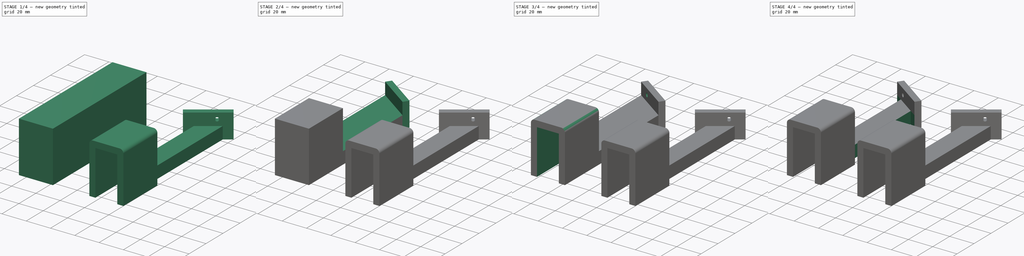
[diagram: build sequence overview — one tinted view per stage of 4, left to right]
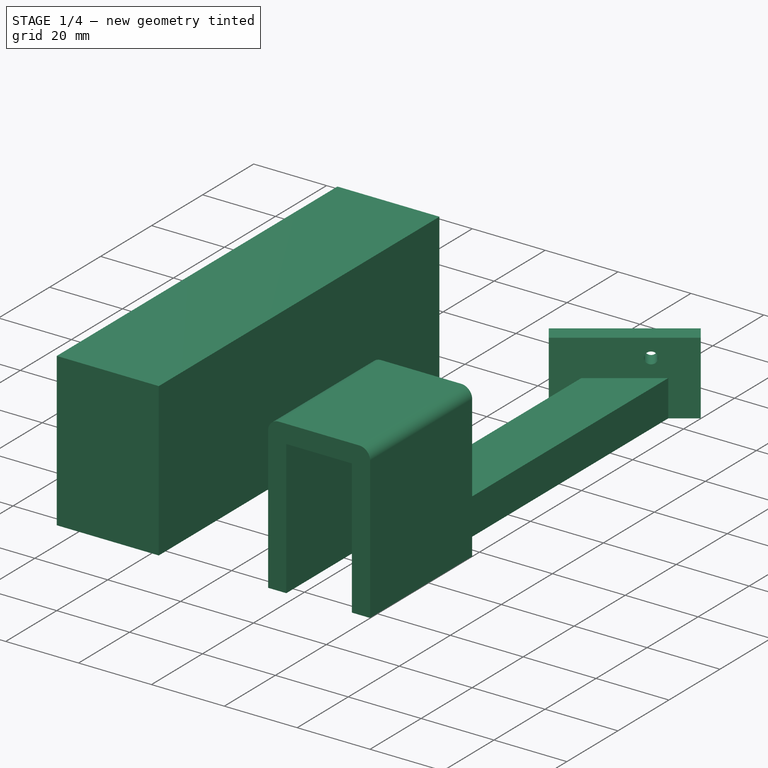
[diagram: stage 1 of 4 — iso view after this stage's code; geometry added in this stage tinted green]
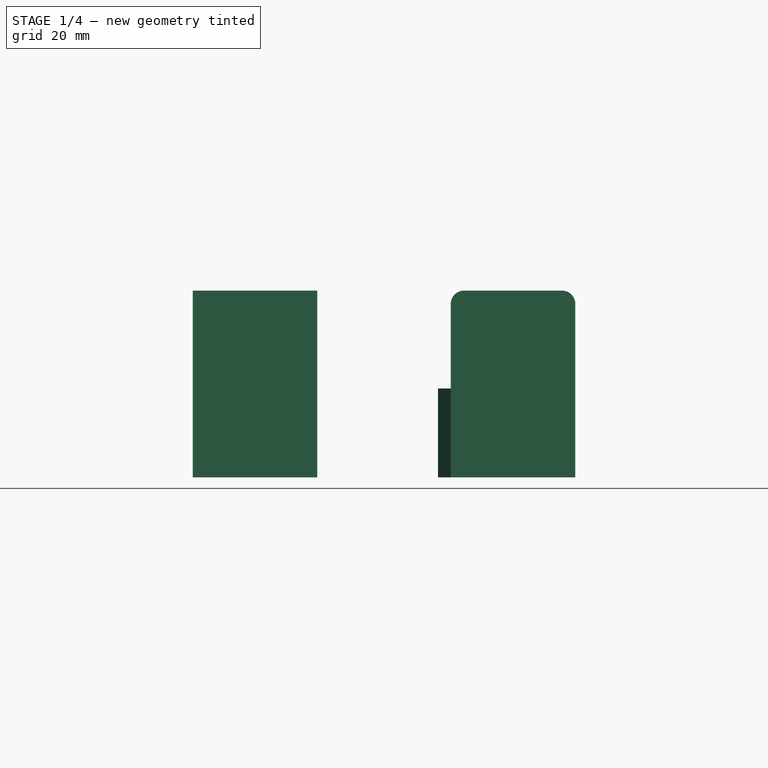
[diagram: stage 1 of 4 — front view after this stage's code; geometry added in this stage tinted green]
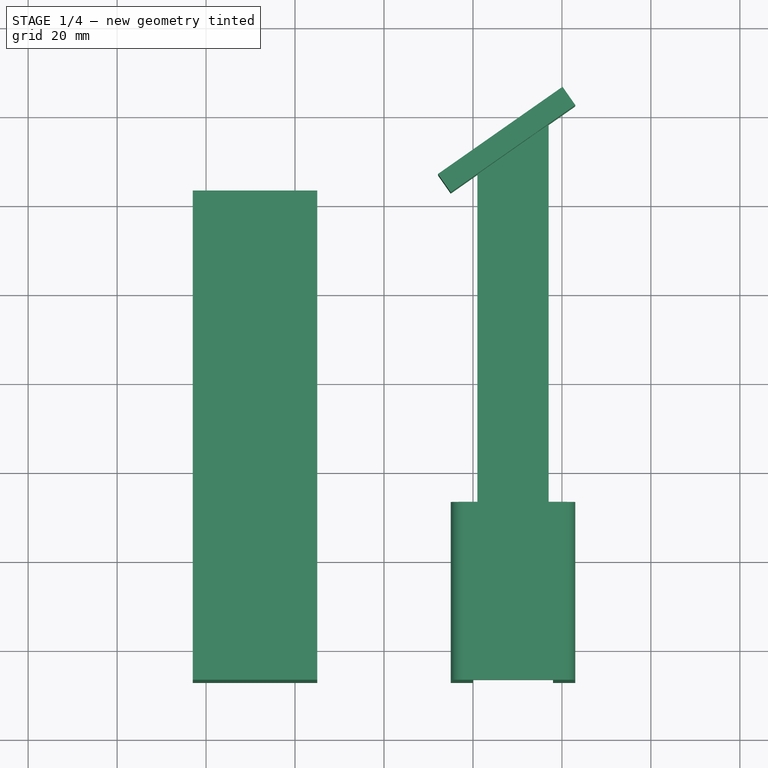
[diagram: stage 1 of 4 — top view after this stage's code; geometry added in this stage tinted green]
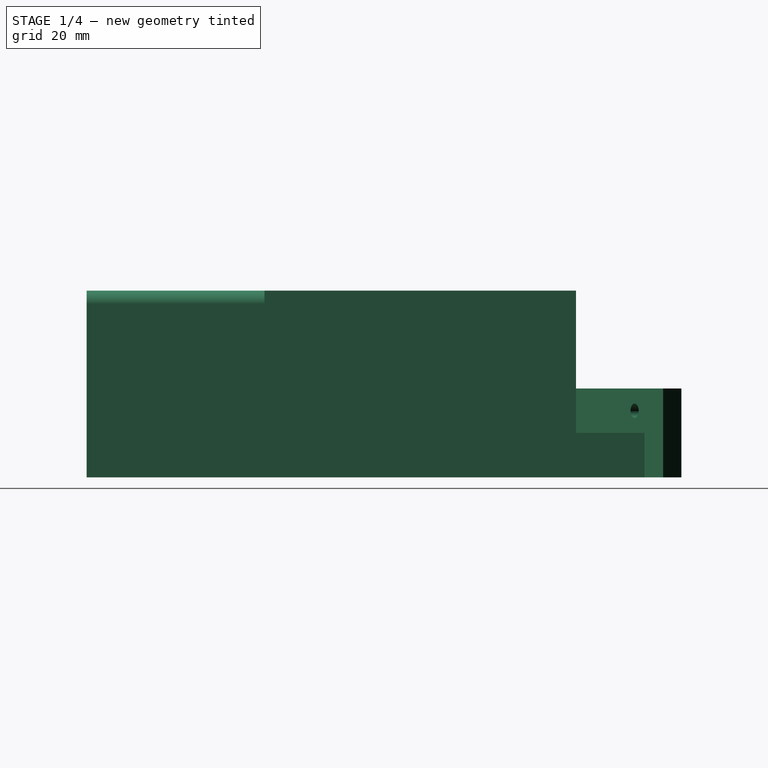
[diagram: stage 1 of 4 — right view after this stage's code; geometry added in this stage tinted green]
FCSTD DOCUMENT  (FreeCAD 0.14R3702 (Git))
Label: base nexus
License: CC-BY 3.0
LicenseURL: http://creativecommons.org/licenses/by/3.0/
objects: Sketcher::SketchObject×7, PartDesign::Pocket×5, PartDesign::Pad×2, App::MeasureDistance×2, PartDesign::Draft×1, PartDesign::Fillet×1, Part::Feature×1, Part::Mirroring×1
note: 25 computed .brp shape members not serialized (recipe doc carries the construction recipe); baked Part::Feature solids carry a one-line shape summary decoded from their .brp

FEATURE [Sketcher::SketchObject] Sketch
  sketch-geometry (4):
    g0: LineSegment StartX=-43 StartY=42.8669 StartZ=0 EndX=-15 EndY=42.8669 EndZ=0
    g1: LineSegment StartX=-15 StartY=42.8669 StartZ=0 EndX=-15 EndY=-67.1331 EndZ=0
    g2: LineSegment StartX=-15 StartY=-67.1331 StartZ=0 EndX=-43 EndY=-67.1331 EndZ=0
    g3: LineSegment StartX=-43 StartY=-67.1331 StartZ=0 EndX=-43 EndY=42.8669 EndZ=0
  constraints (11):
    c: Coincident(g0,g1)
    c: Coincident(g1,g2)
    c: Coincident(g2,g3)
    c: Coincident(g3,g0)
    c: Horizontal(g0)
    c: Horizontal(g2)
    c: Vertical(g1)
    c: Vertical(g3)
    c: DistanceY(g1) = -110
    c: DistanceX(g0) = 28
    c: DistanceX(g1) = -15
FEATURE [PartDesign::Pad] Pad
  Length = 42
  Length2 = 100
  Sketch = -> Sketch
  Type = 0
FEATURE [Part::Feature] Pocket004001  label="Pocket005"
  shape: bbox 30.87 x 133.7 x 42 mm, 21 faces (baked)
FEATURE [Part::Mirroring] Part__Mirroring  label="Pocket005 (Mirror #1)"
  Base = (0,0,0)
  Normal = (1,0,0)
  Source = -> Pocket004001
FEATURE [App::MeasureDistance] Distance  label="Distance: 28.000"
  Distance = 28
  P1 = (-43,-67.1331,0)
  P2 = (-15,-67.1331,0.032585)
FEATURE [App::MeasureDistance] Distance001  label="Distance: 42.000"
  Distance = 42
  P1 = (-19.9657,-67.1331,42)
  P2 = (-20,-67.1331,0)
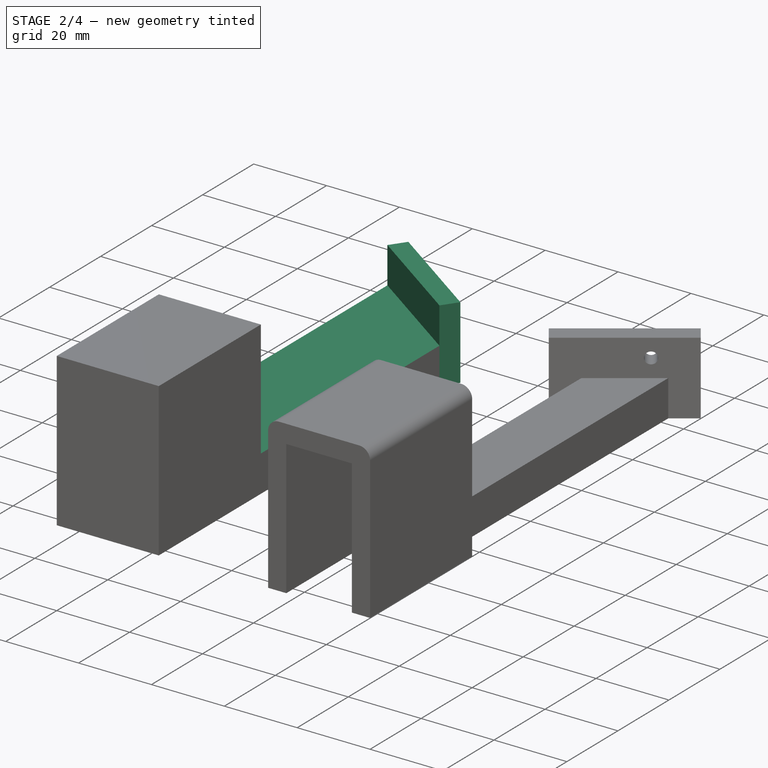
[diagram: stage 2 of 4 — iso view after this stage's code; geometry added in this stage tinted green]
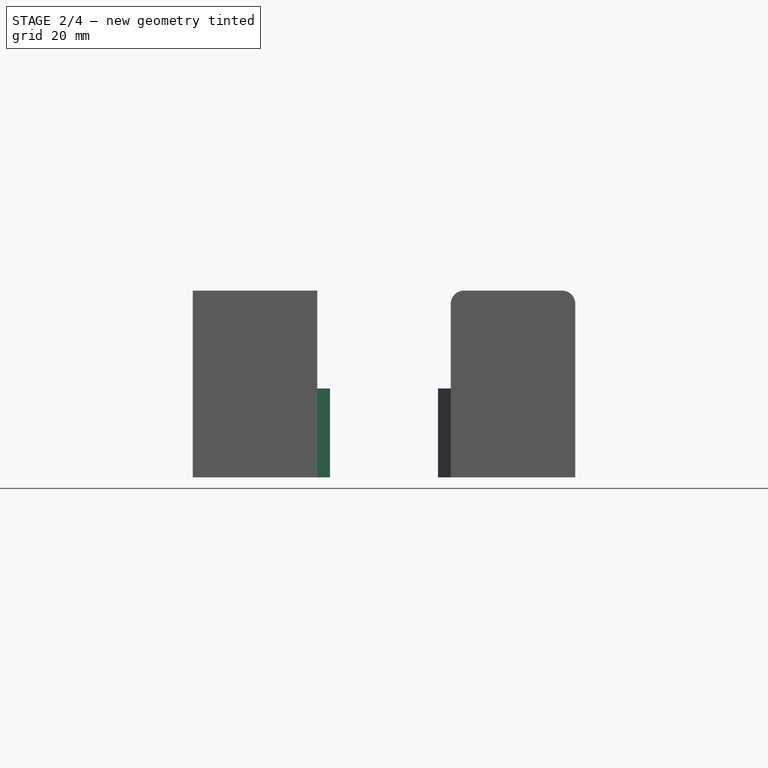
[diagram: stage 2 of 4 — front view after this stage's code; geometry added in this stage tinted green]
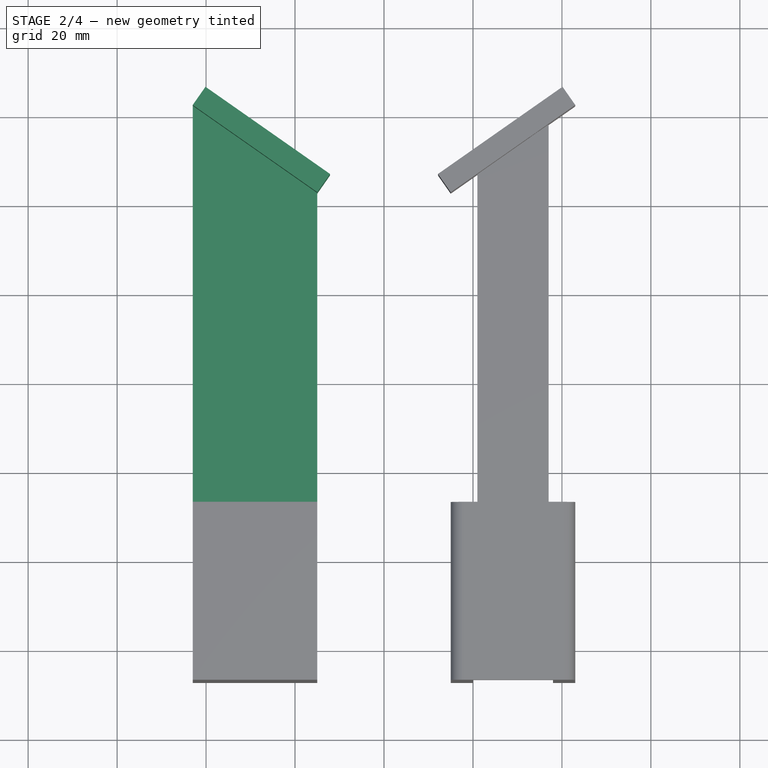
[diagram: stage 2 of 4 — top view after this stage's code; geometry added in this stage tinted green]
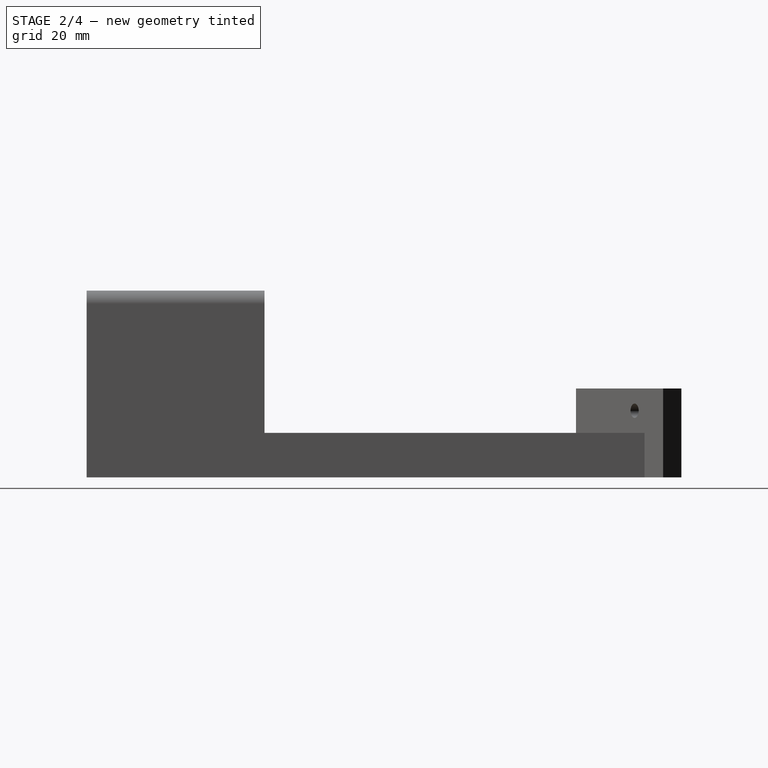
[diagram: stage 2 of 4 — right view after this stage's code; geometry added in this stage tinted green]
FEATURE [Sketcher::SketchObject] Sketch001
  ExternalGeometry = -> [Pad]
  Placement = pos=(0,0,42) rot=(0,0,1;0rad)
  Support = -> Pad [Face6]
  sketch-geometry (4):
    g0: LineSegment StartX=-43 StartY=42.8669 StartZ=0 EndX=-15 EndY=42.8669 EndZ=0
    g1: LineSegment StartX=-15 StartY=42.8669 StartZ=0 EndX=-15 EndY=-27.1331 EndZ=0
    g2: LineSegment StartX=-15 StartY=-27.1331 StartZ=0 EndX=-43 EndY=-27.1331 EndZ=0
    g3: LineSegment StartX=-43 StartY=-27.1331 StartZ=0 EndX=-43 EndY=42.8669 EndZ=0
  constraints (12):
    c: Coincident(g0,g1)
    c: Coincident(g1,g2)
    c: Coincident(g2,g3)
    c: Coincident(g3,g0)
    c: Horizontal(g0)
    c: Horizontal(g2)
    c: Vertical(g1)
    c: Vertical(g3)
    c: DistanceX(g1,g-3) = 0
    c: DistanceY(g1,g-3) = -40
    c: DistanceX(g-4,g0) = 0
    c: DistanceY(g0,g-4) = 0
FEATURE [PartDesign::Pocket] Pocket
  Length = 32
  Sketch = -> Sketch001
  Type = 0
FEATURE [PartDesign::Draft] Draft
  Angle = 35
  Base = -> Pocket [Face1]
  NeutralPlane = -> Pocket [Face3]
  PullDirection = -> Pocket [Edge3]
FEATURE [Sketcher::SketchObject] Sketch002
  ExternalGeometry = -> [Draft]
  Placement = pos=(15.206,21.7164,0) rot=(0.217607,0.690162,0.690162;2.71306rad)
  Support = -> Draft [Face1]
  sketch-geometry (4):
    g0: LineSegment StartX=36.8747 StartY=20 StartZ=0 EndX=71.0564 EndY=20 EndZ=0
    g1: LineSegment StartX=71.0564 StartY=20 StartZ=0 EndX=71.0564 EndY=0 EndZ=0
    g2: LineSegment StartX=71.0564 StartY=0 StartZ=0 EndX=36.8747 EndY=0 EndZ=0
    g3: LineSegment StartX=36.8747 StartY=0 StartZ=0 EndX=36.8747 EndY=20 EndZ=0
  constraints (11):
    c: Coincident(g0,g1)
    c: Coincident(g1,g2)
    c: Coincident(g2,g3)
    c: Coincident(g3,g0)
    c: Horizontal(g0)
    c: Horizontal(g2)
    c: Vertical(g1)
    c: Vertical(g3)
    c: Coincident(g2,g-3)
    c: Coincident(g1,g-3)
    c: DistanceY(g1,g0) = 20
FEATURE [PartDesign::Pad] Pad001
  Length = 5
  Length2 = 100
  Sketch = -> Sketch002
  Type = 0
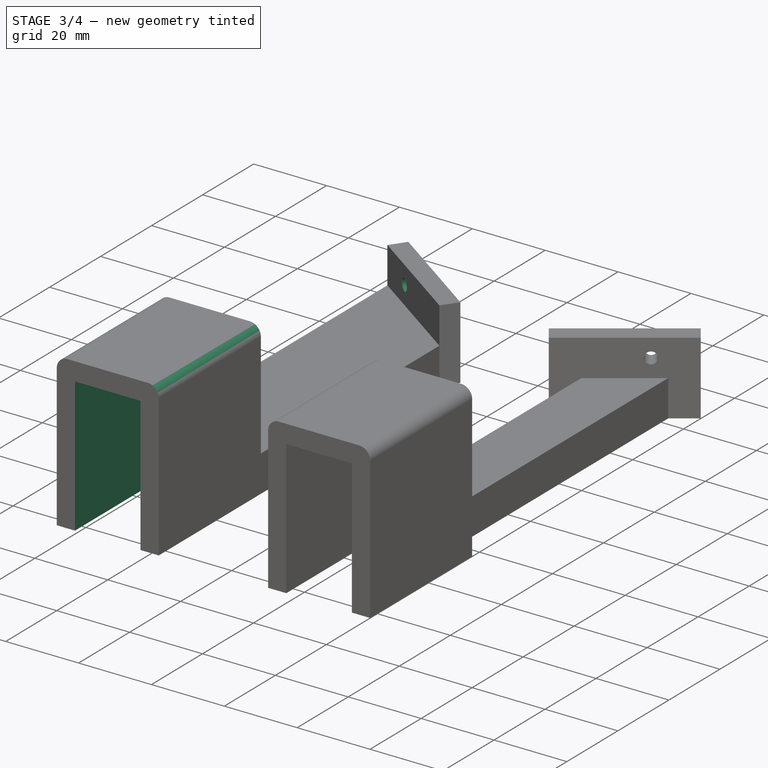
[diagram: stage 3 of 4 — iso view after this stage's code; geometry added in this stage tinted green]
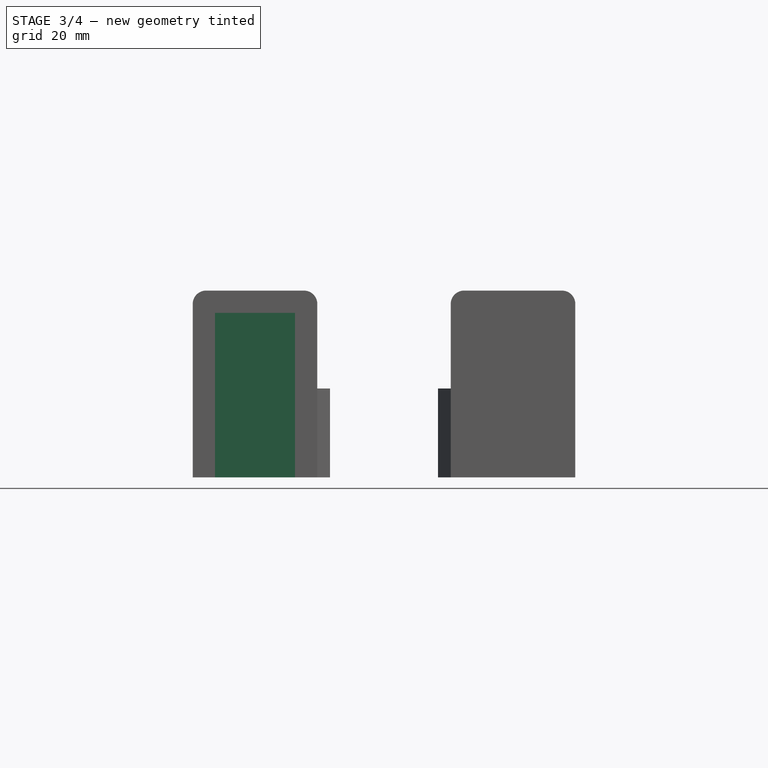
[diagram: stage 3 of 4 — front view after this stage's code; geometry added in this stage tinted green]
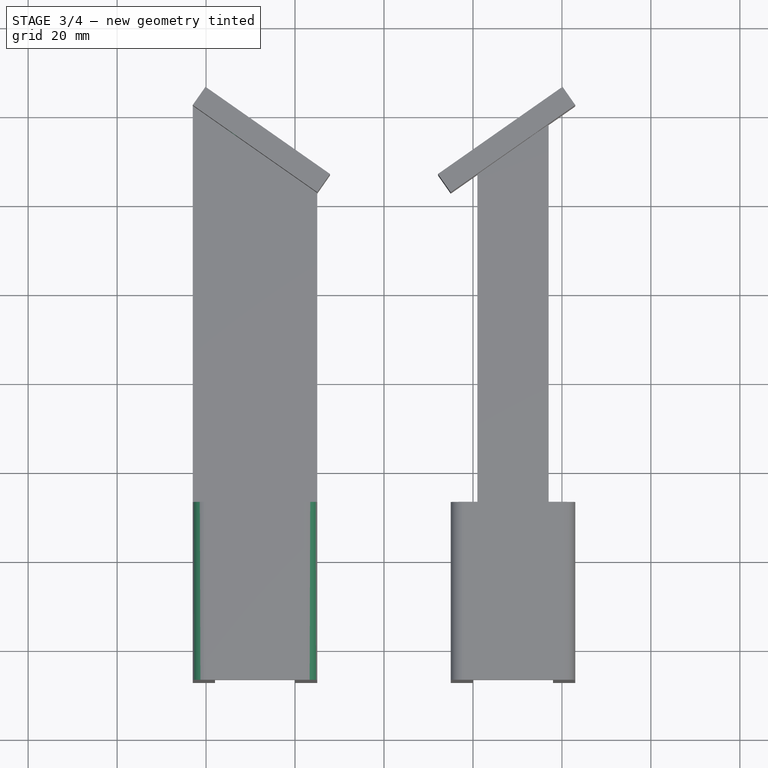
[diagram: stage 3 of 4 — top view after this stage's code; geometry added in this stage tinted green]
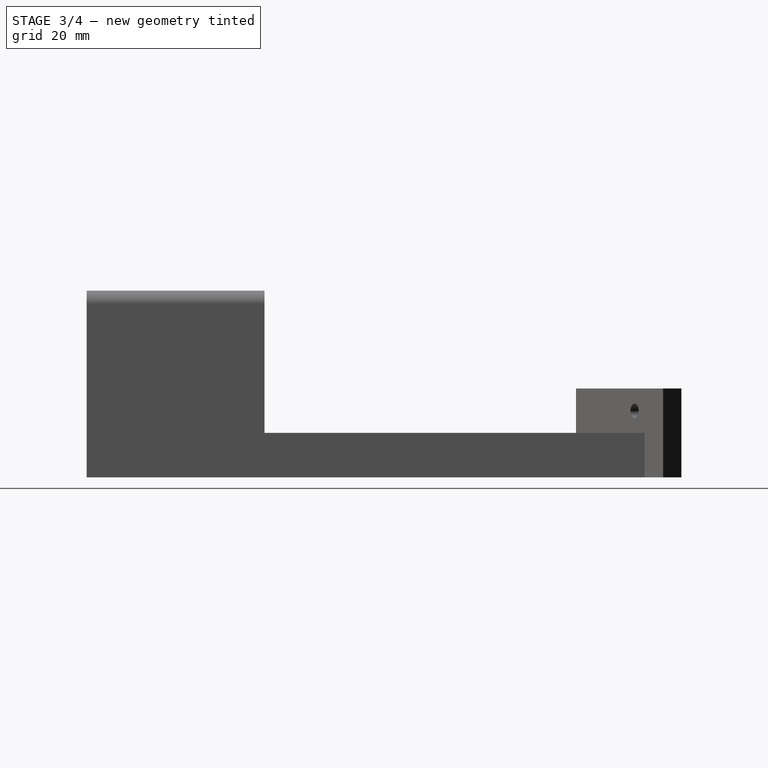
[diagram: stage 3 of 4 — right view after this stage's code; geometry added in this stage tinted green]
FEATURE [Sketcher::SketchObject] Sketch003
  ExternalGeometry = -> [Pad001]
  Placement = pos=(18.0739,25.8122,0) rot=(0.217607,0.690162,0.690162;2.71306rad)
  Support = -> Pad001 [Face12]
  sketch-geometry (1):
    g0: Circle CenterX=59.8747 CenterY=15 CenterZ=0 NormalX=0 NormalY=0 NormalZ=1 Radius=1.6
  constraints (3):
    c: DistanceY(g0,g-3) = -15
    c: Radius(g0) = 1.6
    c: DistanceX(g-3,g0) = 23
FEATURE [PartDesign::Pocket] Pocket001
  Length = 5
  Sketch = -> Sketch003
  Type = 1
FEATURE [Sketcher::SketchObject] Sketch004
  ExternalGeometry = -> [Pocket001]
  Placement = pos=(0,0,0) rot=(1,0,0;3.14159rad)
  Support = -> Pocket001 [Face6]
  sketch-geometry (4):
    g0: LineSegment StartX=-38 StartY=67.1331 StartZ=0 EndX=-20 EndY=67.1331 EndZ=0
    g1: LineSegment StartX=-20 StartY=67.1331 StartZ=0 EndX=-20 EndY=32.1331 EndZ=0
    g2: LineSegment StartX=-20 StartY=32.1331 StartZ=0 EndX=-38 EndY=32.1331 EndZ=0
    g3: LineSegment StartX=-38 StartY=32.1331 StartZ=0 EndX=-38 EndY=67.1331 EndZ=0
  constraints (12):
    c: Coincident(g0,g1)
    c: Coincident(g1,g2)
    c: Coincident(g2,g3)
    c: Coincident(g3,g0)
    c: Horizontal(g0)
    c: Horizontal(g2)
    c: Vertical(g1)
    c: Vertical(g3)
    c: DistanceX(g1,g-3) = 5
    c: DistanceY(g1,g-3) = -5
    c: DistanceY(g0,g-4) = 0
    c: DistanceX(g0,g-4) = -5
FEATURE [PartDesign::Pocket] Pocket002
  Length = 37
  Sketch = -> Sketch004
  Type = 0
FEATURE [PartDesign::Fillet] Fillet
  Base = -> Pocket002 [Edge11,Edge9]
  Radius = 3
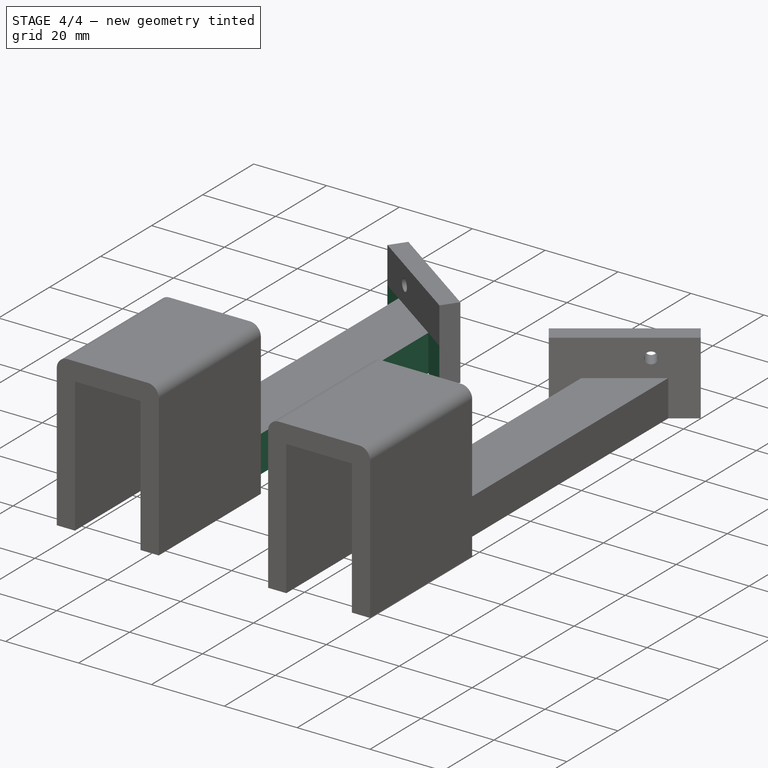
[diagram: stage 4 of 4 — iso view after this stage's code; geometry added in this stage tinted green]
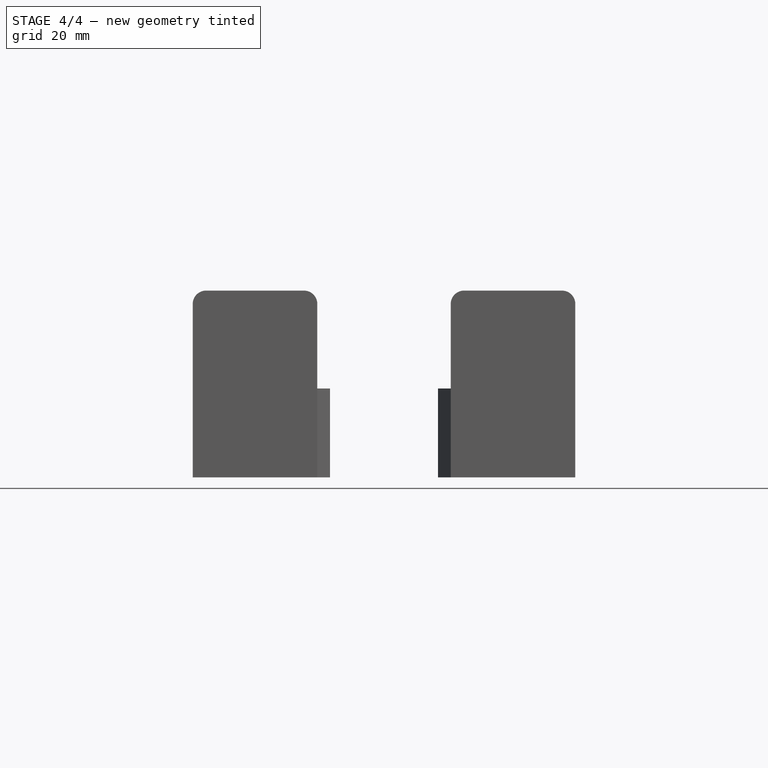
[diagram: stage 4 of 4 — front view after this stage's code; geometry added in this stage tinted green]
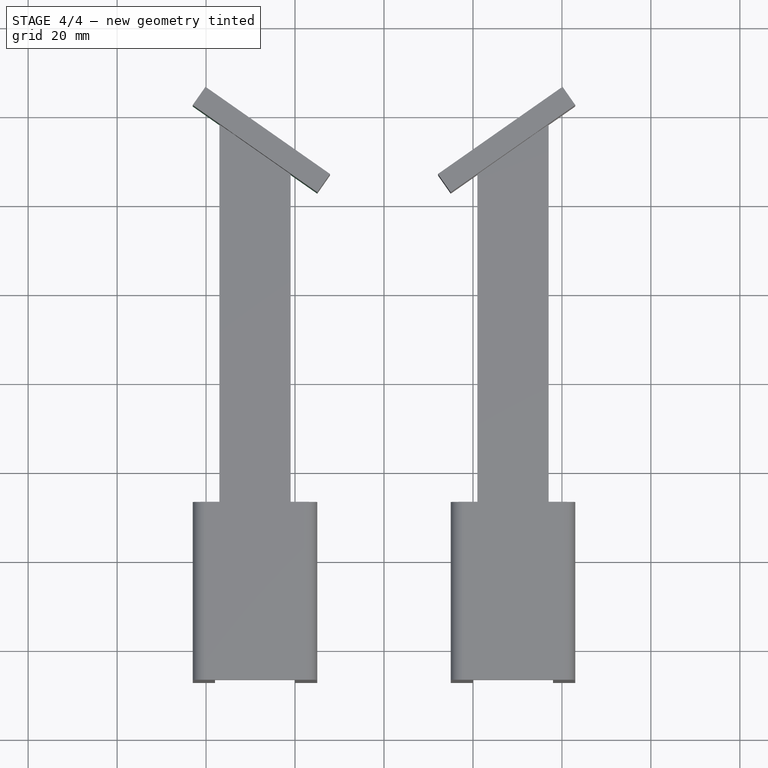
[diagram: stage 4 of 4 — top view after this stage's code; geometry added in this stage tinted green]
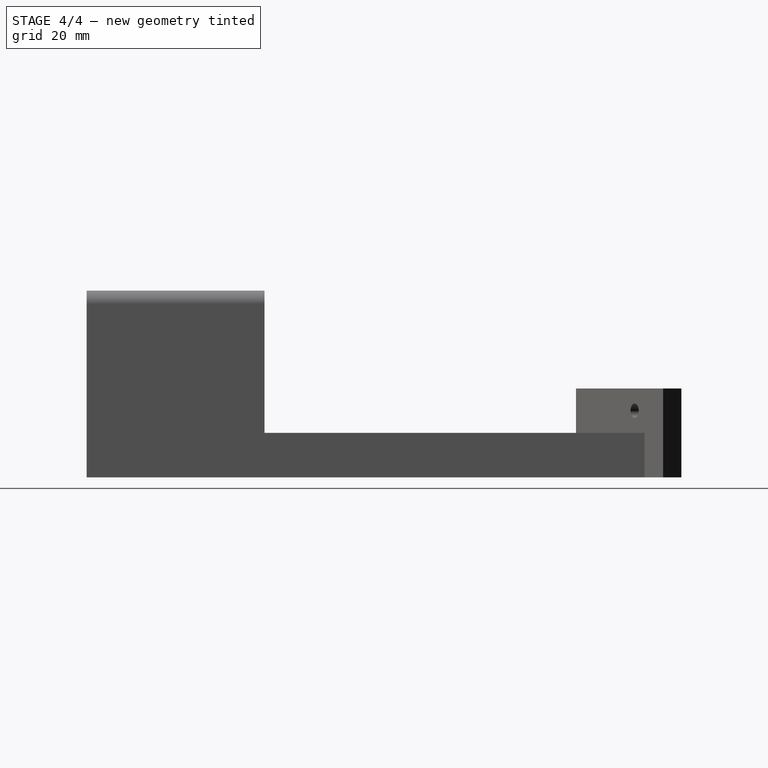
[diagram: stage 4 of 4 — right view after this stage's code; geometry added in this stage tinted green]
FEATURE [Sketcher::SketchObject] Sketch005
  ExternalGeometry = -> [Fillet]
  Placement = pos=(0,0,10) rot=(0,0,1;0rad)
  Support = -> Fillet [Face4]
  sketch-geometry (4):
    g0: LineSegment StartX=-43 StartY=62.4727 StartZ=0 EndX=-37 EndY=58.2715 EndZ=0
    g1: LineSegment StartX=-37 StartY=58.2715 StartZ=0 EndX=-37 EndY=-27.1331 EndZ=0
    g2: LineSegment StartX=-37 StartY=-27.1331 StartZ=0 EndX=-43 EndY=-27.1331 EndZ=0
    g3: LineSegment StartX=-43 StartY=-27.1331 StartZ=0 EndX=-43 EndY=62.4727 EndZ=0
  constraints (11):
    c: Coincident(g0,g1)
    c: Coincident(g1,g2)
    c: Coincident(g2,g3)
    c: Coincident(g3,g0)
    c: Horizontal(g2)
    c: Vertical(g1)
    c: Vertical(g3)
    c: Coincident(g2,g-3)
    c: Parallel(g0,g-4)
    c: Coincident(g0,g-4)
    c: DistanceX(g1,g2) = -6
FEATURE [PartDesign::Pocket] Pocket003
  Length = 5
  Sketch = -> Sketch005
  Type = 1
FEATURE [Sketcher::SketchObject] Sketch006
  ExternalGeometry = -> [Pocket003]
  Placement = pos=(0,0,10) rot=(0,0,1;0rad)
  Support = -> Pocket003 [Face4]
  sketch-geometry (4):
    g0: LineSegment StartX=-21 StartY=47.0682 StartZ=0 EndX=-15 EndY=42.8669 EndZ=0
    g1: LineSegment StartX=-15 StartY=42.8669 StartZ=0 EndX=-15 EndY=-27.1331 EndZ=0
    g2: LineSegment StartX=-15 StartY=-27.1331 StartZ=0 EndX=-21 EndY=-27.1331 EndZ=0
    g3: LineSegment StartX=-21 StartY=-27.1331 StartZ=0 EndX=-21 EndY=47.0682 EndZ=0
  constraints (11):
    c: Coincident(g0,g1)
    c: Coincident(g1,g2)
    c: Coincident(g2,g3)
    c: Coincident(g3,g0)
    c: Horizontal(g2)
    c: Vertical(g1)
    c: Vertical(g3)
    c: Coincident(g1,g-4)
    c: Parallel(g0,g-3)
    c: Coincident(g0,g-3)
    c: DistanceX(g2,g1) = 6
FEATURE [PartDesign::Pocket] Pocket004
  Length = 5
  Sketch = -> Sketch006
  Type = 1
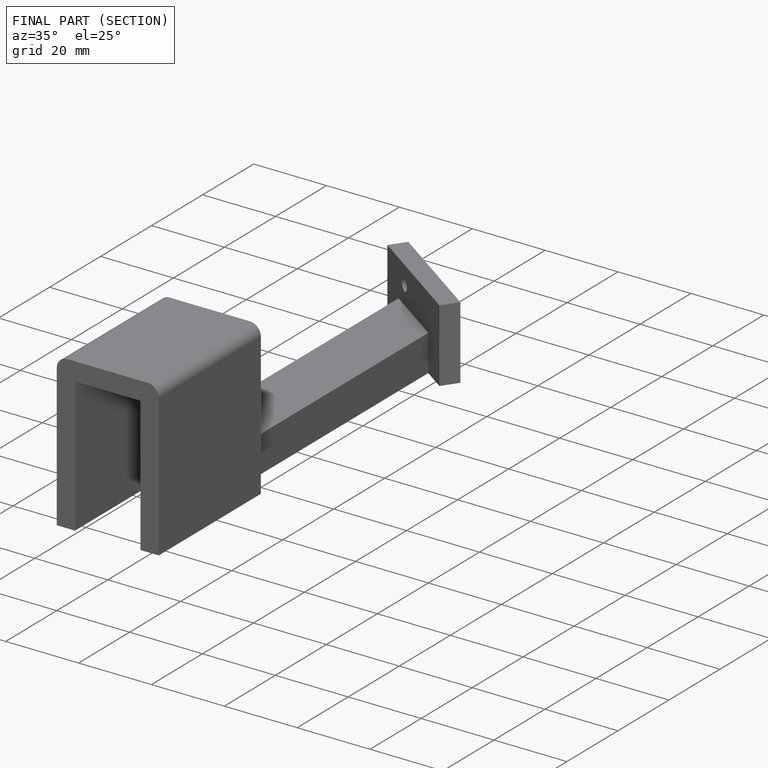
[diagram: finished part — half-section view (interior)]
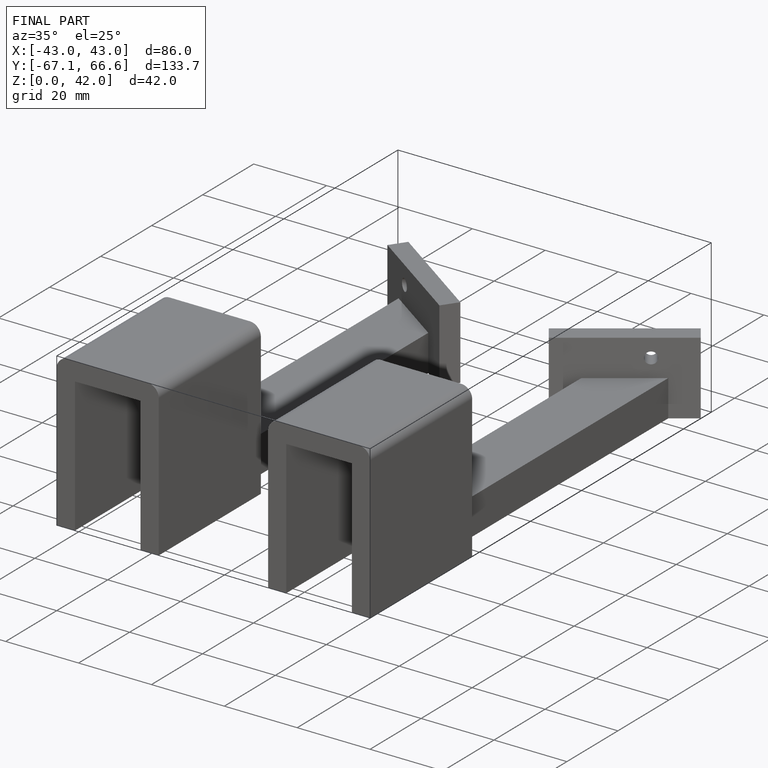
[diagram: finished part — iso view with bounding-box wireframe]
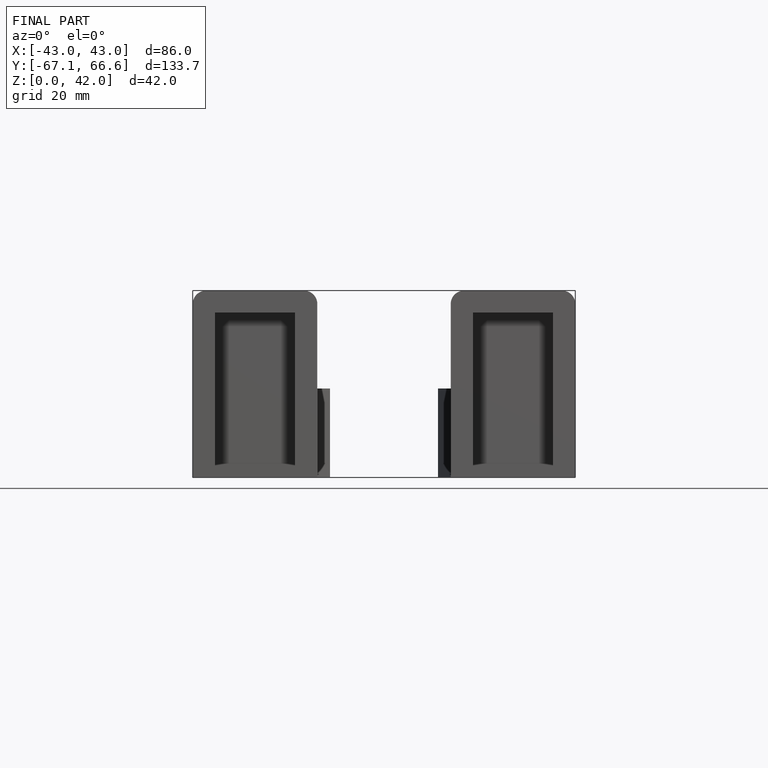
[diagram: finished part — front view with bounding-box wireframe]
